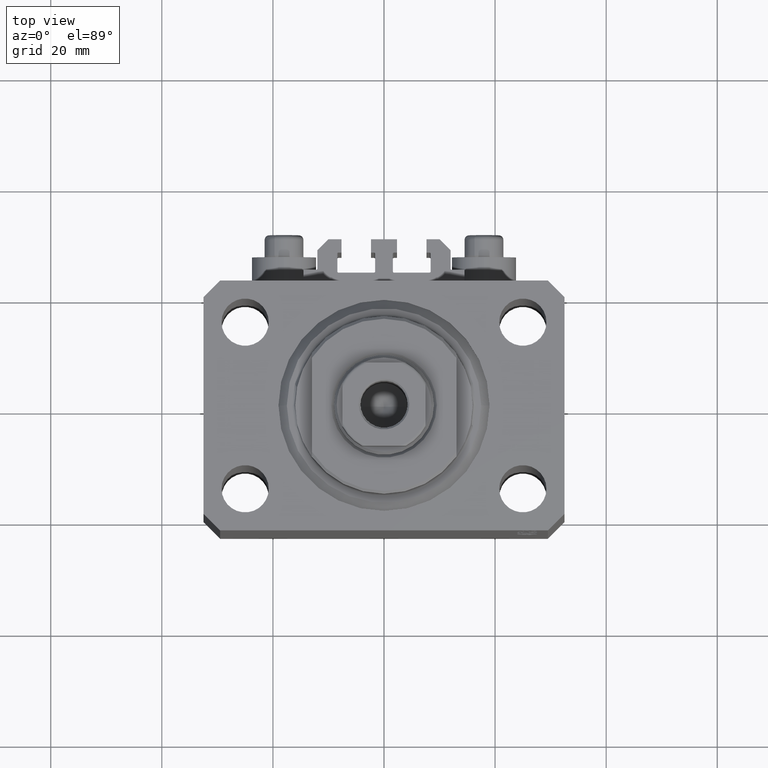
[diagram: clean part render]
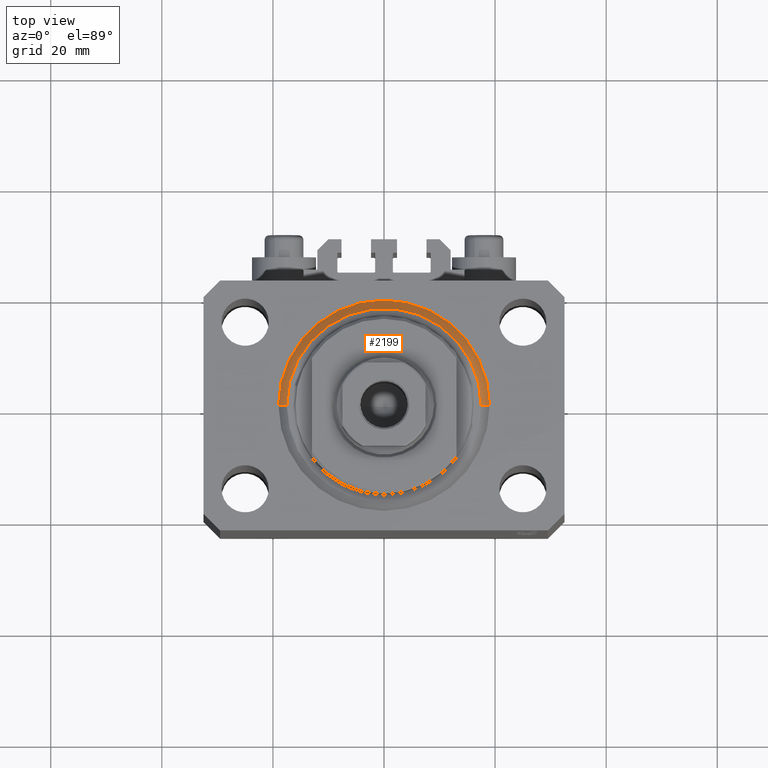
[diagram: same view with one face highlighted and labeled with its STEP entity id]
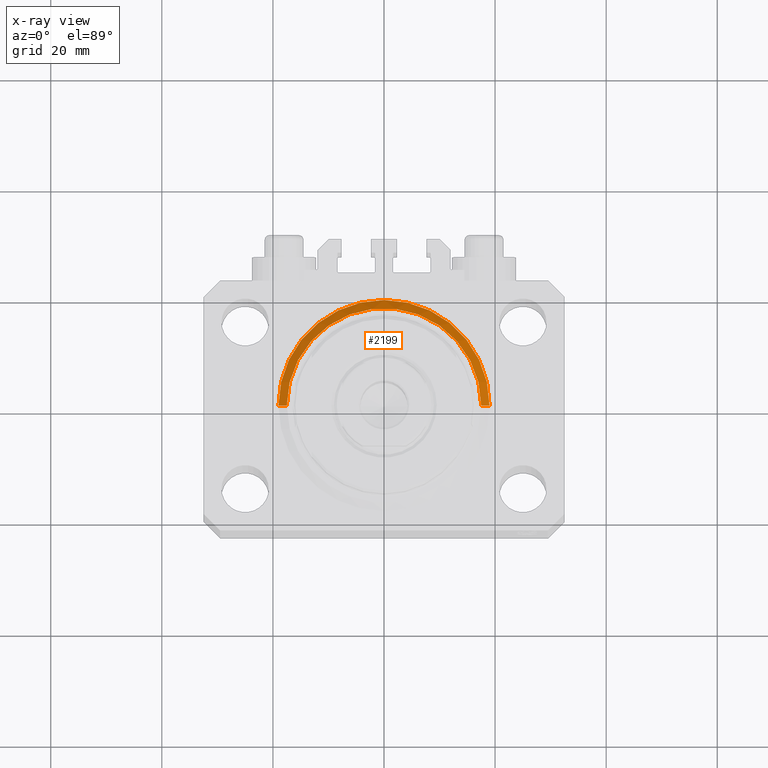
[diagram: x-ray of the same camera — body ghosted, the highlighted face saturated]
A machine part, top view. The second image highlights one B-rep face of the part: STEP entity #2199.
The next image is the same camera in x-ray: the body ghosted, the highlighted face saturated — about 0% of this face is hidden behind the body in this view.
In plain terms, the highlighted conical surface has half-angle 45 deg.
Its self-contained STEP definition (entity closure, byte-faithful):
#1166 = CIRCLE ( 'NONE', #11135, 19.00000000000000000 ) ;
#2199 = ADVANCED_FACE ( 'NONE', ( #5456 ), #14444, .T. ) ;
#5456 = FACE_OUTER_BOUND ( 'NONE', #17666, .T. ) ;
#5938 = DIRECTION ( 'NONE',  ( 1.000000000000000000, 0.000000000000000000, 0.000000000000000000 ) ) ;
#7495 = DIRECTION ( 'NONE',  ( 0.7071067811865483499, 0.000000000000000000, 0.7071067811865467956 ) ) ;
#8245 = DIRECTION ( 'NONE',  ( -0.000000000000000000, -0.000000000000000000, -1.000000000000000000 ) ) ;
#9396 = CARTESIAN_POINT ( 'NONE',  ( 17.49999999999999289, 0.000000000000000000, 0.000000000000000000 ) ) ;
#10784 = CIRCLE ( 'NONE', #33005, 17.49999999999999289 ) ;
#11135 = AXIS2_PLACEMENT_3D ( 'NONE', #44616, #15828, #12470 ) ;
#11586 = ORIENTED_EDGE ( 'NONE', *, *, #39883, .F. ) ;
#12470 = DIRECTION ( 'NONE',  ( 1.000000000000000000, 0.000000000000000000, 0.000000000000000000 ) ) ;
#14444 = CONICAL_SURFACE ( 'NONE', #37384, 19.00000000000000000, 0.7853981633974492782 ) ;
#15828 = DIRECTION ( 'NONE',  ( -0.000000000000000000, -0.000000000000000000, 1.000000000000000000 ) ) ;
#17666 = EDGE_LOOP ( 'NONE', ( #21428, #20127, #34401, #11586 ) ) ;
#20108 = CARTESIAN_POINT ( 'NONE',  ( 0.000000000000000000, 0.000000000000000000, 1.500000000000004885 ) ) ;
#20127 = ORIENTED_EDGE ( 'NONE', *, *, #27042, .T. ) ;
#21428 = ORIENTED_EDGE ( 'NONE', *, *, #45058, .F. ) ;
#21950 = VERTEX_POINT ( 'NONE', #39810 ) ;
#25665 = LINE ( 'NONE', #33786, #40100 ) ;
#26023 = CARTESIAN_POINT ( 'NONE',  ( 0.000000000000000000, 0.000000000000000000, 0.000000000000000000 ) ) ;
#27042 = EDGE_CURVE ( 'NONE', #43102, #46298, #25665, .T. ) ;
#28124 = VECTOR ( 'NONE', #7495, 1000.000000000000000 ) ;
#31600 = DIRECTION ( 'NONE',  ( -0.000000000000000000, -0.000000000000000000, 1.000000000000000000 ) ) ;
#33005 = AXIS2_PLACEMENT_3D ( 'NONE', #26023, #8245, #41352 ) ;
#33786 = CARTESIAN_POINT ( 'NONE',  ( -19.00000000000000000, 2.326828918379970970E-15, 1.500000000000004885 ) ) ;
#34175 = EDGE_CURVE ( 'NONE', #21950, #46298, #1166, .T. ) ;
#34401 = ORIENTED_EDGE ( 'NONE', *, *, #34175, .F. ) ;
#34886 = VERTEX_POINT ( 'NONE', #9396 ) ;
#35740 = CARTESIAN_POINT ( 'NONE',  ( -17.49999999999999289, 2.234980408443919215E-15, 0.000000000000000000 ) ) ;
#37384 = AXIS2_PLACEMENT_3D ( 'NONE', #20108, #31600, #5938 ) ;
#39810 = CARTESIAN_POINT ( 'NONE',  ( 19.00000000000000000, 2.326828918379970970E-15, 1.500000000000004885 ) ) ;
#39883 = EDGE_CURVE ( 'NONE', #34886, #21950, #39888, .T. ) ;
#39888 = LINE ( 'NONE', #40356, #28124 ) ;
#40100 = VECTOR ( 'NONE', #40734, 1000.000000000000000 ) ;
#40356 = CARTESIAN_POINT ( 'NONE',  ( 19.00000000000000000, 0.000000000000000000, 1.500000000000004885 ) ) ;
#40734 = DIRECTION ( 'NONE',  ( -0.7071067811865483499, 8.659560562354943952E-17, 0.7071067811865467956 ) ) ;
#41352 = DIRECTION ( 'NONE',  ( 1.000000000000000000, 0.000000000000000000, 0.000000000000000000 ) ) ;
#42696 = CARTESIAN_POINT ( 'NONE',  ( -19.00000000000000000, 0.000000000000000000, 1.500000000000004885 ) ) ;
#43102 = VERTEX_POINT ( 'NONE', #35740 ) ;
#44616 = CARTESIAN_POINT ( 'NONE',  ( 0.000000000000000000, 0.000000000000000000, 1.500000000000004885 ) ) ;
#45058 = EDGE_CURVE ( 'NONE', #43102, #34886, #10784, .T. ) ;
#46298 = VERTEX_POINT ( 'NONE', #42696 ) ;